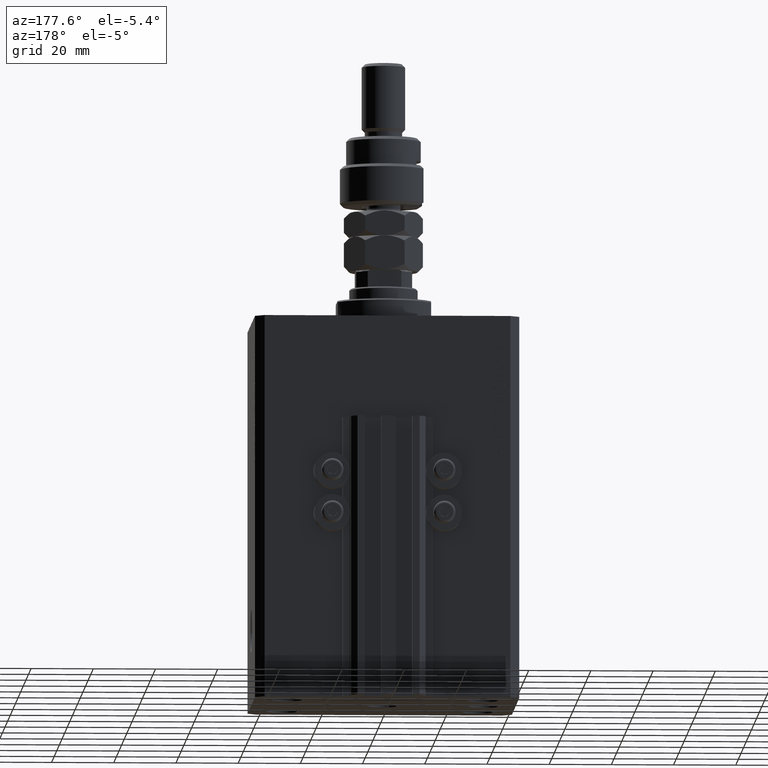
[diagram: clean part render]
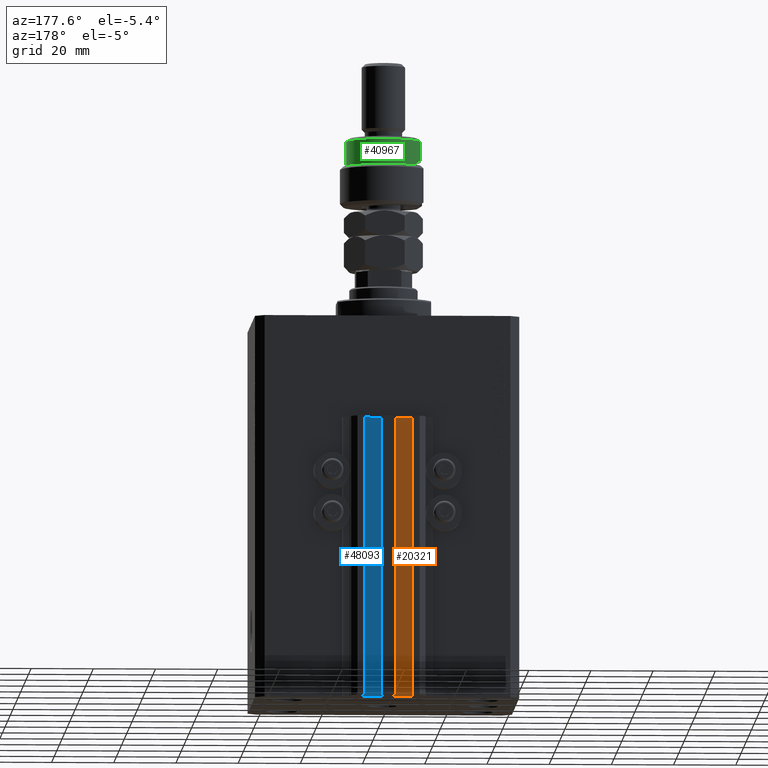
[diagram: same view with three faces highlighted in distinct colors, each labeled with its STEP entity id]
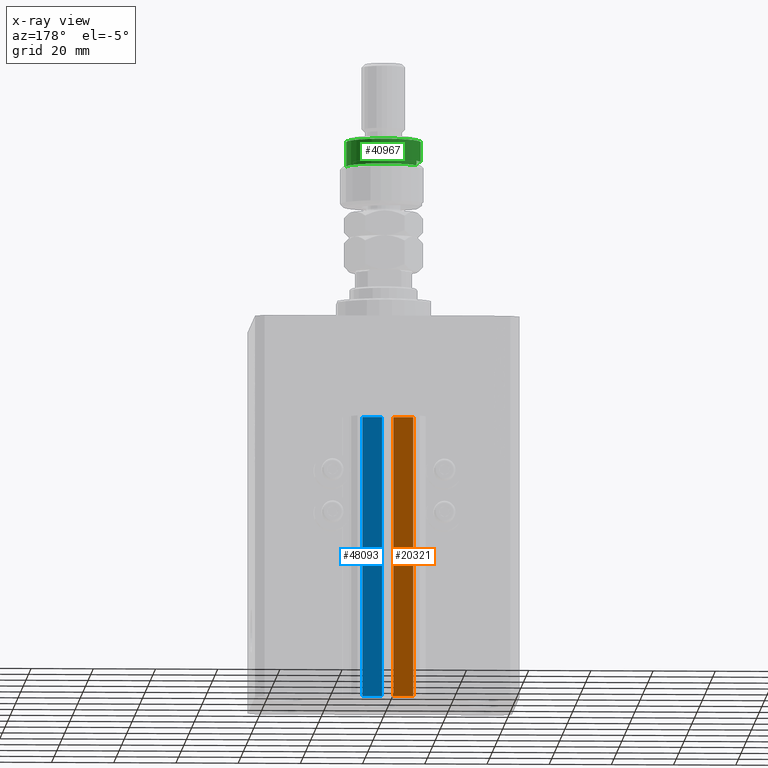
[diagram: x-ray of the same camera — body ghosted, the three highlighted faces saturated]
A machine part, auxiliary view with three faces highlighted in distinct colors.
The next image is the same camera in x-ray (body ghosted, the three faces saturated) — at least one of them is partly hidden behind the body in this view.
Their STEP definitions:

[orange] entity #20321 — the highlighted planar face has unit normal (0, 1, 0).
#3326 = VECTOR ( 'NONE', #22114, 1000.000000000000000 ) ;
#5525 = VERTEX_POINT ( 'NONE', #8783 ) ;
#7167 = EDGE_CURVE ( 'NONE', #44428, #21794, #36811, .T. ) ;
#8783 = CARTESIAN_POINT ( 'NONE',  ( -8.199999999999997513, 33.50000000000000000, -123.0000000000000000 ) ) ;
#10149 = EDGE_CURVE ( 'NONE', #21794, #21206, #48704, .T. ) ;
#10906 = ORIENTED_EDGE ( 'NONE', *, *, #7167, .F. ) ;
#13024 = VECTOR ( 'NONE', #29422, 1000.000000000000000 ) ;
#13409 = FACE_OUTER_BOUND ( 'NONE', #25294, .T. ) ;
#13787 = CARTESIAN_POINT ( 'NONE',  ( -8.199999999999997513, 33.50000000000000000, -123.0000000000000000 ) ) ;
#13958 = CARTESIAN_POINT ( 'NONE',  ( -1.800000000000000933, 33.50000000000000000, -33.00000000000000000 ) ) ;
#14559 = VECTOR ( 'NONE', #25678, 1000.000000000000000 ) ;
#14576 = EDGE_CURVE ( 'NONE', #5525, #21206, #33561, .T. ) ;
#16806 = ORIENTED_EDGE ( 'NONE', *, *, #14576, .T. ) ;
#17472 = CARTESIAN_POINT ( 'NONE',  ( -1.800000000000000933, 33.50000000000000000, -123.0000000000000000 ) ) ;
#19380 = ORIENTED_EDGE ( 'NONE', *, *, #28340, .T. ) ;
#20321 = ADVANCED_FACE ( 'NONE', ( #13409 ), #33201, .T. ) ;
#21206 = VERTEX_POINT ( 'NONE', #41461 ) ;
#21794 = VERTEX_POINT ( 'NONE', #40709 ) ;
#22114 = DIRECTION ( 'NONE',  ( 0.000000000000000000, 0.000000000000000000, 1.000000000000000000 ) ) ;
#22898 = VECTOR ( 'NONE', #44490, 1000.000000000000000 ) ;
#23126 = CARTESIAN_POINT ( 'NONE',  ( -1.800000000000000933, 33.50000000000000000, -123.0000000000000000 ) ) ;
#25179 = CARTESIAN_POINT ( 'NONE',  ( -1.800000000000000933, 33.50000000000000000, -123.0000000000000000 ) ) ;
#25294 = EDGE_LOOP ( 'NONE', ( #39111, #10906, #19380, #16806 ) ) ;
#25678 = DIRECTION ( 'NONE',  ( -1.000000000000000000, 0.000000000000000000, 0.000000000000000000 ) ) ;
#28340 = EDGE_CURVE ( 'NONE', #44428, #5525, #44700, .T. ) ;
#29216 = CARTESIAN_POINT ( 'NONE',  ( -1.800000000000000933, 33.50000000000000000, -123.0000000000000000 ) ) ;
#29422 = DIRECTION ( 'NONE',  ( -1.000000000000000000, 0.000000000000000000, 0.000000000000000000 ) ) ;
#29764 = AXIS2_PLACEMENT_3D ( 'NONE', #17472, #48678, #36747 ) ;
#33201 = PLANE ( 'NONE',  #29764 ) ;
#33561 = LINE ( 'NONE', #13787, #22898 ) ;
#36747 = DIRECTION ( 'NONE',  ( 0.000000000000000000, 0.000000000000000000, 1.000000000000000000 ) ) ;
#36811 = LINE ( 'NONE', #25179, #3326 ) ;
#39111 = ORIENTED_EDGE ( 'NONE', *, *, #10149, .F. ) ;
#40709 = CARTESIAN_POINT ( 'NONE',  ( -1.800000000000000933, 33.50000000000000000, -33.00000000000000000 ) ) ;
#41461 = CARTESIAN_POINT ( 'NONE',  ( -8.199999999999997513, 33.50000000000000000, -33.00000000000000000 ) ) ;
#44428 = VERTEX_POINT ( 'NONE', #23126 ) ;
#44490 = DIRECTION ( 'NONE',  ( 0.000000000000000000, 0.000000000000000000, 1.000000000000000000 ) ) ;
#44700 = LINE ( 'NONE', #29216, #14559 ) ;
#48678 = DIRECTION ( 'NONE',  ( 0.000000000000000000, 1.000000000000000000, -0.000000000000000000 ) ) ;
#48704 = LINE ( 'NONE', #13958, #13024 ) ;

[blue] entity #48093 — the highlighted planar face has unit normal (0, 1, 0).
#475 = CARTESIAN_POINT ( 'NONE',  ( 8.199999999999999289, 33.50000000000000000, -123.0000000000000000 ) ) ;
#982 = PLANE ( 'NONE',  #11981 ) ;
#2986 = VERTEX_POINT ( 'NONE', #34945 ) ;
#3543 = LINE ( 'NONE', #14970, #46369 ) ;
#4043 = FACE_OUTER_BOUND ( 'NONE', #21128, .T. ) ;
#7171 = CARTESIAN_POINT ( 'NONE',  ( 1.800000000000000933, 33.50000000000000000, -123.0000000000000000 ) ) ;
#7875 = VERTEX_POINT ( 'NONE', #18669 ) ;
#8291 = ORIENTED_EDGE ( 'NONE', *, *, #11168, .F. ) ;
#11168 = EDGE_CURVE ( 'NONE', #21565, #16256, #40030, .T. ) ;
#11231 = LINE ( 'NONE', #7171, #46813 ) ;
#11981 = AXIS2_PLACEMENT_3D ( 'NONE', #475, #43603, #15962 ) ;
#14484 = DIRECTION ( 'NONE',  ( -1.000000000000000000, 0.000000000000000000, 0.000000000000000000 ) ) ;
#14895 = EDGE_CURVE ( 'NONE', #21565, #7875, #3543, .T. ) ;
#14970 = CARTESIAN_POINT ( 'NONE',  ( 8.199999999999999289, 33.50000000000000000, -123.0000000000000000 ) ) ;
#15962 = DIRECTION ( 'NONE',  ( 0.000000000000000000, 0.000000000000000000, 1.000000000000000000 ) ) ;
#16256 = VERTEX_POINT ( 'NONE', #25801 ) ;
#18669 = CARTESIAN_POINT ( 'NONE',  ( 1.800000000000000933, 33.50000000000000000, -123.0000000000000000 ) ) ;
#19531 = VECTOR ( 'NONE', #27854, 1000.000000000000000 ) ;
#21128 = EDGE_LOOP ( 'NONE', ( #23395, #8291, #47472, #34687 ) ) ;
#21565 = VERTEX_POINT ( 'NONE', #33639 ) ;
#23395 = ORIENTED_EDGE ( 'NONE', *, *, #40845, .F. ) ;
#24191 = DIRECTION ( 'NONE',  ( -1.000000000000000000, 0.000000000000000000, 0.000000000000000000 ) ) ;
#25801 = CARTESIAN_POINT ( 'NONE',  ( 8.199999999999999289, 33.50000000000000000, -33.00000000000000000 ) ) ;
#27854 = DIRECTION ( 'NONE',  ( 0.000000000000000000, 0.000000000000000000, 1.000000000000000000 ) ) ;
#30488 = DIRECTION ( 'NONE',  ( 0.000000000000000000, 0.000000000000000000, 1.000000000000000000 ) ) ;
#32278 = CARTESIAN_POINT ( 'NONE',  ( 8.199999999999999289, 33.50000000000000000, -33.00000000000000000 ) ) ;
#33639 = CARTESIAN_POINT ( 'NONE',  ( 8.199999999999999289, 33.50000000000000000, -123.0000000000000000 ) ) ;
#34687 = ORIENTED_EDGE ( 'NONE', *, *, #44845, .T. ) ;
#34945 = CARTESIAN_POINT ( 'NONE',  ( 1.800000000000000933, 33.50000000000000000, -33.00000000000000000 ) ) ;
#39647 = LINE ( 'NONE', #32278, #48308 ) ;
#40030 = LINE ( 'NONE', #47139, #19531 ) ;
#40845 = EDGE_CURVE ( 'NONE', #16256, #2986, #39647, .T. ) ;
#43603 = DIRECTION ( 'NONE',  ( 0.000000000000000000, 1.000000000000000000, -0.000000000000000000 ) ) ;
#44845 = EDGE_CURVE ( 'NONE', #7875, #2986, #11231, .T. ) ;
#46369 = VECTOR ( 'NONE', #14484, 1000.000000000000000 ) ;
#46813 = VECTOR ( 'NONE', #30488, 1000.000000000000000 ) ;
#47139 = CARTESIAN_POINT ( 'NONE',  ( 8.199999999999999289, 33.50000000000000000, -123.0000000000000000 ) ) ;
#47472 = ORIENTED_EDGE ( 'NONE', *, *, #14895, .T. ) ;
#48093 = ADVANCED_FACE ( 'NONE', ( #4043 ), #982, .T. ) ;
#48308 = VECTOR ( 'NONE', #24191, 1000.000000000000000 ) ;

[green] entity #40967 — the highlighted cylindrical surface (partial cylindrical patch) has radius 12 mm, axis along (-0, -0, -1).
#203 = CARTESIAN_POINT ( 'NONE',  ( 0.000000000000000000, 0.000000000000000000, 13.00000000000000000 ) ) ;
#399 = LINE ( 'NONE', #1152, #18751 ) ;
#690 = DIRECTION ( 'NONE',  ( 0.000000000000000000, 0.000000000000000000, 1.000000000000000000 ) ) ;
#1152 = CARTESIAN_POINT ( 'NONE',  ( -10.39230484541326760, 6.000000000000000000, 22.00000000000000000 ) ) ;
#2328 = AXIS2_PLACEMENT_3D ( 'NONE', #203, #690, #47114 ) ;
#3078 = CARTESIAN_POINT ( 'NONE',  ( 0.000000000000000000, 0.000000000000000000, 14.50000000000000000 ) ) ;
#3660 = VERTEX_POINT ( 'NONE', #31693 ) ;
#5787 = AXIS2_PLACEMENT_3D ( 'NONE', #3078, #34765, #38557 ) ;
#6661 = ORIENTED_EDGE ( 'NONE', *, *, #11396, .T. ) ;
#8149 = EDGE_CURVE ( 'NONE', #3660, #18875, #31683, .T. ) ;
#8610 = AXIS2_PLACEMENT_3D ( 'NONE', #33792, #45484, #14028 ) ;
#10432 = CIRCLE ( 'NONE', #23391, 12.00000000000000178 ) ;
#11396 = EDGE_CURVE ( 'NONE', #32080, #18875, #399, .T. ) ;
#11541 = CARTESIAN_POINT ( 'NONE',  ( 0.000000000000000000, 0.000000000000000000, 20.99999999999999645 ) ) ;
#11925 = EDGE_CURVE ( 'NONE', #45737, #34896, #17781, .T. ) ;
#13439 = CARTESIAN_POINT ( 'NONE',  ( 12.00000000000000178, 1.469576158976824144E-15, 13.00000000000000000 ) ) ;
#14028 = DIRECTION ( 'NONE',  ( -1.000000000000000000, 0.000000000000000000, 0.000000000000000000 ) ) ;
#14223 = CARTESIAN_POINT ( 'NONE',  ( 12.00000000000000178, 1.469576158976824144E-15, 22.00000000000000000 ) ) ;
#15830 = DIRECTION ( 'NONE',  ( 1.000000000000000000, 0.000000000000000000, 0.000000000000000000 ) ) ;
#17028 = CARTESIAN_POINT ( 'NONE',  ( 12.00000000000000178, 1.469576158976824144E-15, 20.99999999999999645 ) ) ;
#17781 = LINE ( 'NONE', #14223, #20322 ) ;
#18751 = VECTOR ( 'NONE', #20180, 1000.000000000000000 ) ;
#18875 = VERTEX_POINT ( 'NONE', #45354 ) ;
#20124 = ORIENTED_EDGE ( 'NONE', *, *, #30454, .F. ) ;
#20180 = DIRECTION ( 'NONE',  ( 0.000000000000000000, 0.000000000000000000, 1.000000000000000000 ) ) ;
#20322 = VECTOR ( 'NONE', #40860, 1000.000000000000000 ) ;
#21371 = ORIENTED_EDGE ( 'NONE', *, *, #26656, .T. ) ;
#23391 = AXIS2_PLACEMENT_3D ( 'NONE', #11541, #27255, #15830 ) ;
#24425 = ORIENTED_EDGE ( 'NONE', *, *, #50170, .T. ) ;
#26294 = VERTEX_POINT ( 'NONE', #39198 ) ;
#26656 = EDGE_CURVE ( 'NONE', #26294, #45737, #10432, .T. ) ;
#27255 = DIRECTION ( 'NONE',  ( 0.000000000000000000, 0.000000000000000000, -1.000000000000000000 ) ) ;
#28979 = LINE ( 'NONE', #32777, #49548 ) ;
#29998 = CYLINDRICAL_SURFACE ( 'NONE', #8610, 12.00000000000000178 ) ;
#30454 = EDGE_CURVE ( 'NONE', #26294, #3660, #28979, .T. ) ;
#31683 = CIRCLE ( 'NONE', #5787, 12.00000000000000178 ) ;
#31693 = CARTESIAN_POINT ( 'NONE',  ( -12.00000000000000178, 0.000000000000000000, 14.50000000000000000 ) ) ;
#32080 = VERTEX_POINT ( 'NONE', #50179 ) ;
#32777 = CARTESIAN_POINT ( 'NONE',  ( -12.00000000000000178, 0.000000000000000000, 22.00000000000000000 ) ) ;
#33792 = CARTESIAN_POINT ( 'NONE',  ( 0.000000000000000000, 0.000000000000000000, 22.00000000000000000 ) ) ;
#34677 = EDGE_LOOP ( 'NONE', ( #21371, #38568, #24425, #6661, #45485, #20124 ) ) ;
#34765 = DIRECTION ( 'NONE',  ( 0.000000000000000000, 0.000000000000000000, -1.000000000000000000 ) ) ;
#34896 = VERTEX_POINT ( 'NONE', #13439 ) ;
#36311 = CIRCLE ( 'NONE', #2328, 12.00000000000000178 ) ;
#37100 = FACE_OUTER_BOUND ( 'NONE', #34677, .T. ) ;
#38557 = DIRECTION ( 'NONE',  ( -1.000000000000000000, 0.000000000000000000, 0.000000000000000000 ) ) ;
#38568 = ORIENTED_EDGE ( 'NONE', *, *, #11925, .T. ) ;
#39198 = CARTESIAN_POINT ( 'NONE',  ( -12.00000000000000178, 0.000000000000000000, 20.99999999999999645 ) ) ;
#40860 = DIRECTION ( 'NONE',  ( -0.000000000000000000, -0.000000000000000000, -1.000000000000000000 ) ) ;
#40967 = ADVANCED_FACE ( 'NONE', ( #37100 ), #29998, .T. ) ;
#45354 = CARTESIAN_POINT ( 'NONE',  ( -10.39230484541326582, 5.999999999999998224, 14.50000000000000000 ) ) ;
#45484 = DIRECTION ( 'NONE',  ( -0.000000000000000000, -0.000000000000000000, -1.000000000000000000 ) ) ;
#45485 = ORIENTED_EDGE ( 'NONE', *, *, #8149, .F. ) ;
#45737 = VERTEX_POINT ( 'NONE', #17028 ) ;
#47114 = DIRECTION ( 'NONE',  ( 1.000000000000000000, 0.000000000000000000, 0.000000000000000000 ) ) ;
#48254 = DIRECTION ( 'NONE',  ( -0.000000000000000000, -0.000000000000000000, -1.000000000000000000 ) ) ;
#49548 = VECTOR ( 'NONE', #48254, 1000.000000000000000 ) ;
#50170 = EDGE_CURVE ( 'NONE', #34896, #32080, #36311, .T. ) ;
#50179 = CARTESIAN_POINT ( 'NONE',  ( -10.39230484541326760, 6.000000000000000000, 13.00000000000000000 ) ) ;